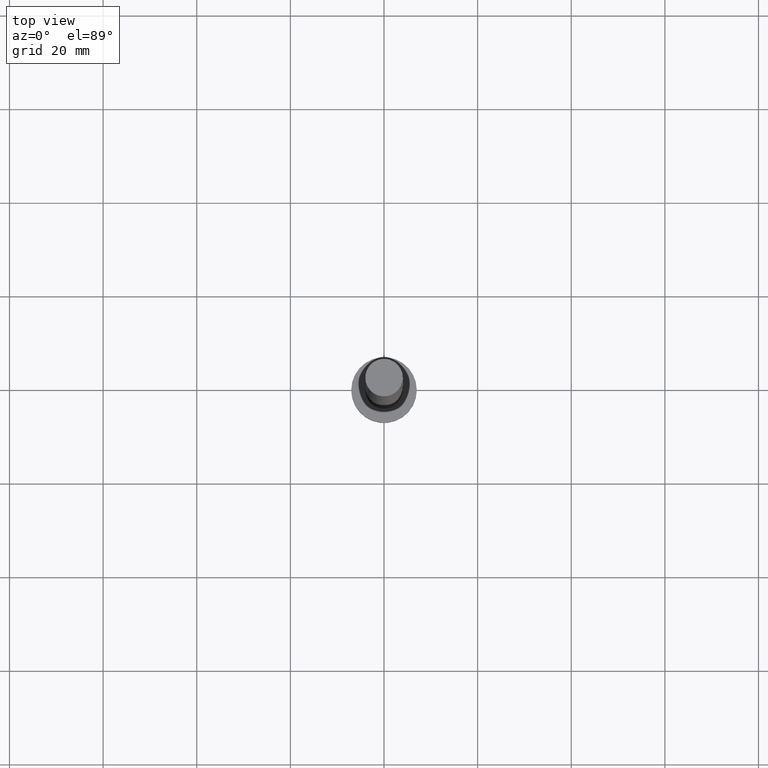
[diagram: clean part render]
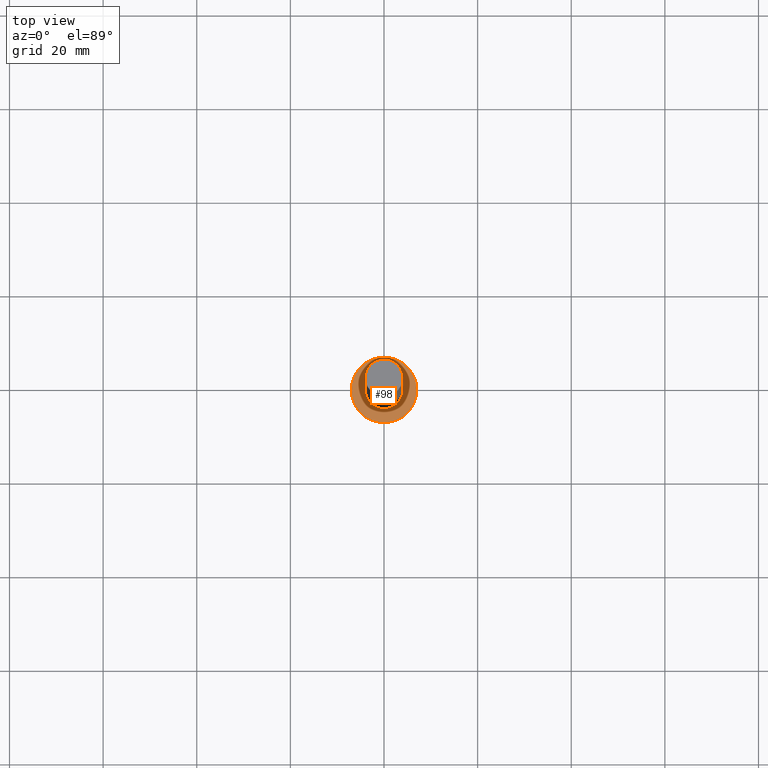
[diagram: same view with one face highlighted and labeled with its STEP entity id]
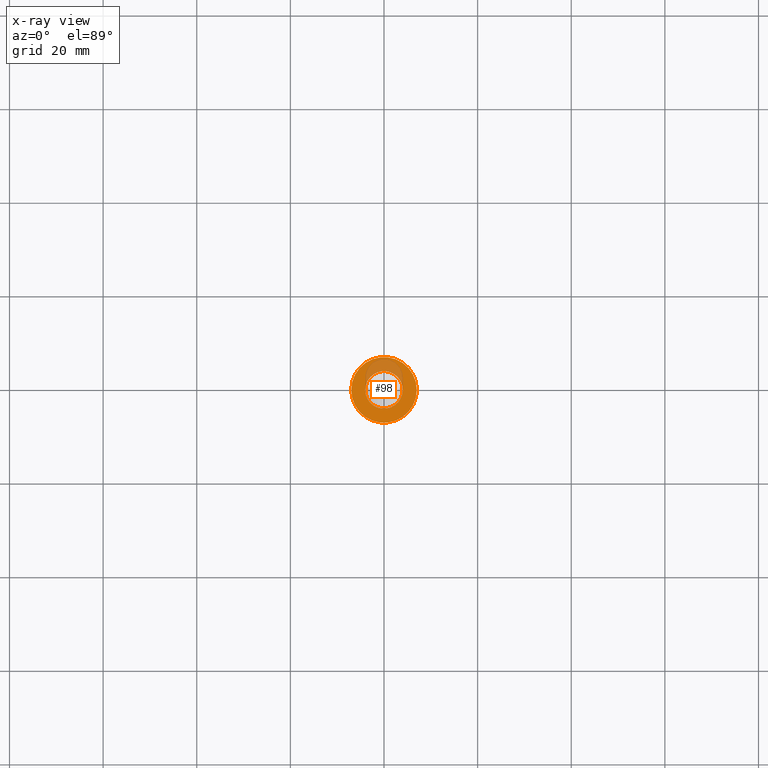
[diagram: x-ray of the same camera — body ghosted, the highlighted face saturated]
A machine part, top view. The second image highlights one B-rep face of the part: STEP entity #98.
The next image is the same camera in x-ray: the body ghosted, the highlighted face saturated — about 20% of this face is hidden behind the body in this view.
In plain terms, the highlighted planar face has unit normal (0, 0, 1).
Its self-contained STEP definition (entity closure, byte-faithful):
#5 = DIRECTION ( 'NONE',  ( 0.000000000000000000, 0.000000000000000000, 1.000000000000000000 ) ) ;
#35 = EDGE_LOOP ( 'NONE', ( #94, #153 ) ) ;
#39 = CIRCLE ( 'NONE', #189, 4.000000000000000000 ) ;
#42 = CARTESIAN_POINT ( 'NONE',  ( 0.000000000000000000, 0.000000000000000000, 5.000000000000000000 ) ) ;
#45 = CARTESIAN_POINT ( 'NONE',  ( -7.000000000000000000, 0.000000000000000000, 5.000000000000000000 ) ) ;
#50 = EDGE_CURVE ( 'NONE', #114, #134, #126, .T. ) ;
#60 = CARTESIAN_POINT ( 'NONE',  ( 0.000000000000000000, 0.000000000000000000, 5.000000000000000000 ) ) ;
#61 = CARTESIAN_POINT ( 'NONE',  ( 0.000000000000000000, 0.000000000000000000, 5.000000000000000000 ) ) ;
#62 = DIRECTION ( 'NONE',  ( 0.000000000000000000, 0.000000000000000000, 1.000000000000000000 ) ) ;
#66 = CIRCLE ( 'NONE', #123, 7.000000000000000000 ) ;
#81 = DIRECTION ( 'NONE',  ( 1.000000000000000000, 0.000000000000000000, 0.000000000000000000 ) ) ;
#83 = PLANE ( 'NONE',  #233 ) ;
#85 = CARTESIAN_POINT ( 'NONE',  ( 4.000000000000000000, 4.898587196589412829E-16, 5.000000000000000000 ) ) ;
#88 = CIRCLE ( 'NONE', #90, 4.000000000000000000 ) ;
#90 = AXIS2_PLACEMENT_3D ( 'NONE', #60, #5, #223 ) ;
#94 = ORIENTED_EDGE ( 'NONE', *, *, #50, .T. ) ;
#98 = ADVANCED_FACE ( 'NONE', ( #164, #138 ), #83, .T. ) ;
#99 = CARTESIAN_POINT ( 'NONE',  ( -4.000000000000000000, 0.000000000000000000, 5.000000000000000000 ) ) ;
#100 = DIRECTION ( 'NONE',  ( 0.000000000000000000, 0.000000000000000000, 1.000000000000000000 ) ) ;
#114 = VERTEX_POINT ( 'NONE', #45 ) ;
#117 = EDGE_CURVE ( 'NONE', #159, #179, #39, .T. ) ;
#118 = DIRECTION ( 'NONE',  ( 1.000000000000000000, 0.000000000000000000, 0.000000000000000000 ) ) ;
#123 = AXIS2_PLACEMENT_3D ( 'NONE', #61, #241, #118 ) ;
#126 = CIRCLE ( 'NONE', #146, 7.000000000000000000 ) ;
#134 = VERTEX_POINT ( 'NONE', #205 ) ;
#138 = FACE_OUTER_BOUND ( 'NONE', #35, .T. ) ;
#142 = DIRECTION ( 'NONE',  ( 1.000000000000000000, 0.000000000000000000, 0.000000000000000000 ) ) ;
#144 = CARTESIAN_POINT ( 'NONE',  ( 0.000000000000000000, 0.000000000000000000, 5.000000000000000000 ) ) ;
#146 = AXIS2_PLACEMENT_3D ( 'NONE', #42, #206, #81 ) ;
#153 = ORIENTED_EDGE ( 'NONE', *, *, #212, .T. ) ;
#159 = VERTEX_POINT ( 'NONE', #85 ) ;
#164 = FACE_BOUND ( 'NONE', #220, .T. ) ;
#179 = VERTEX_POINT ( 'NONE', #99 ) ;
#181 = CARTESIAN_POINT ( 'NONE',  ( 0.000000000000000000, 0.000000000000000000, 5.000000000000000000 ) ) ;
#189 = AXIS2_PLACEMENT_3D ( 'NONE', #181, #100, #142 ) ;
#205 = CARTESIAN_POINT ( 'NONE',  ( 7.000000000000000000, 8.572527594031473190E-16, 5.000000000000000000 ) ) ;
#206 = DIRECTION ( 'NONE',  ( 0.000000000000000000, 0.000000000000000000, 1.000000000000000000 ) ) ;
#207 = EDGE_CURVE ( 'NONE', #179, #159, #88, .T. ) ;
#212 = EDGE_CURVE ( 'NONE', #134, #114, #66, .T. ) ;
#220 = EDGE_LOOP ( 'NONE', ( #238, #235 ) ) ;
#223 = DIRECTION ( 'NONE',  ( 1.000000000000000000, 0.000000000000000000, 0.000000000000000000 ) ) ;
#227 = DIRECTION ( 'NONE',  ( 1.000000000000000000, 0.000000000000000000, -0.000000000000000000 ) ) ;
#233 = AXIS2_PLACEMENT_3D ( 'NONE', #144, #62, #227 ) ;
#235 = ORIENTED_EDGE ( 'NONE', *, *, #117, .F. ) ;
#238 = ORIENTED_EDGE ( 'NONE', *, *, #207, .F. ) ;
#241 = DIRECTION ( 'NONE',  ( 0.000000000000000000, 0.000000000000000000, 1.000000000000000000 ) ) ;